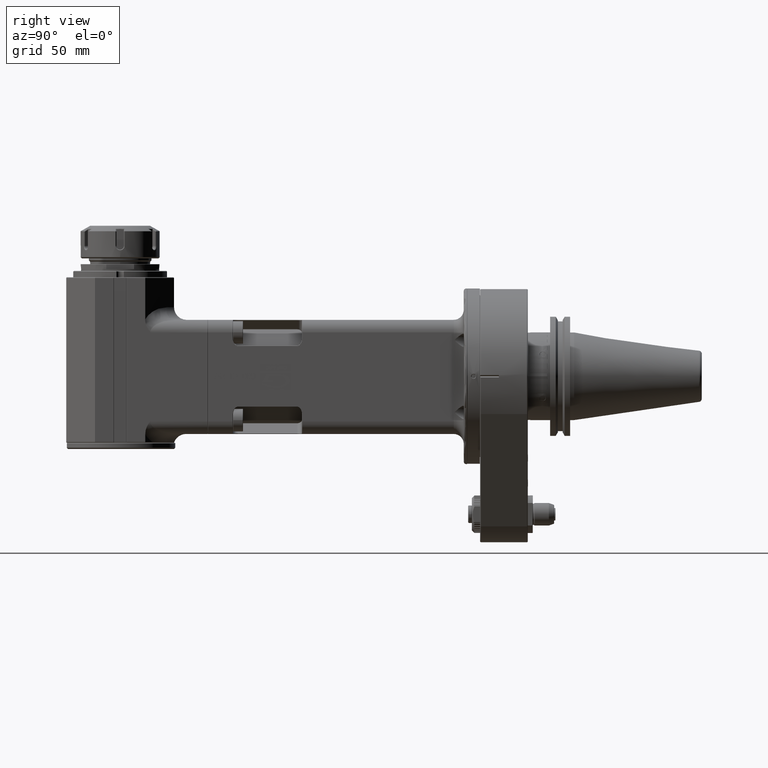
[diagram: clean part render]
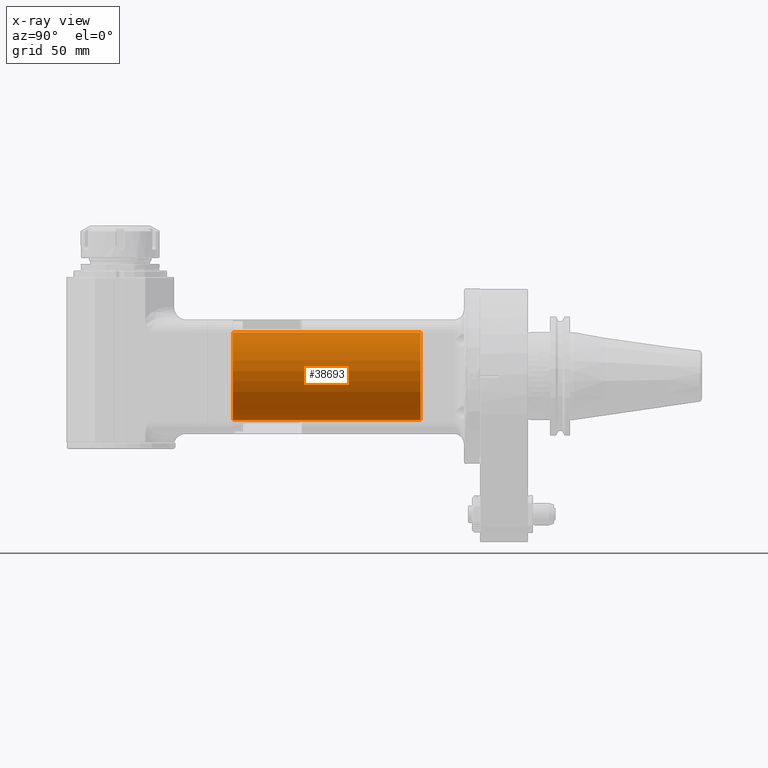
[diagram: x-ray — body ghosted, one internal face saturated and labeled with its STEP entity id]
A machine part, right view, then the same camera in x-ray: the body is ghosted and one INTERNAL B-rep face — a face not visible from any outside direction — is saturated and labeled: STEP entity #38693.
In plain terms, the highlighted cylindrical surface (bore or boss wall) has radius 35 mm, axis along (-0, 1, 0).
Its self-contained STEP definition (entity closure, byte-faithful):
#2159=LINE('',#57457,#5191);
#5191=VECTOR('',#45812,35.);
#8203=CYLINDRICAL_SURFACE('',#41299,35.);
#9077=FACE_OUTER_BOUND('',#11500,.T.);
#11500=EDGE_LOOP('',(#26096,#26097,#26098,#26099));
#14189=CIRCLE('',#41298,35.);
#14190=CIRCLE('',#41300,35.);
#16084=VERTEX_POINT('',#57453);
#16085=VERTEX_POINT('',#57456);
#19971=EDGE_CURVE('',#16084,#16084,#14189,.T.);
#19972=EDGE_CURVE('',#16084,#16085,#2159,.T.);
#19973=EDGE_CURVE('',#16085,#16085,#14190,.T.);
#26096=ORIENTED_EDGE('',*,*,#19971,.F.);
#26097=ORIENTED_EDGE('',*,*,#19972,.T.);
#26098=ORIENTED_EDGE('',*,*,#19973,.F.);
#26099=ORIENTED_EDGE('',*,*,#19972,.F.);
#38693=ADVANCED_FACE('',(#9077),#8203,.F.);
#41298=AXIS2_PLACEMENT_3D('',#57454,#45808,#45809);
#41299=AXIS2_PLACEMENT_3D('',#57455,#45810,#45811);
#41300=AXIS2_PLACEMENT_3D('',#57458,#45813,#45814);
#45808=DIRECTION('center_axis',(0.,1.,0.));
#45809=DIRECTION('ref_axis',(0.,0.,-1.));
#45810=DIRECTION('center_axis',(0.,1.,0.));
#45811=DIRECTION('ref_axis',(0.,0.,-1.));
#45812=DIRECTION('',(0.,1.,0.));
#45813=DIRECTION('center_axis',(0.,-1.,0.));
#45814=DIRECTION('ref_axis',(0.,0.,1.));
#57453=CARTESIAN_POINT('',(4.28626379701574E-15,-197.,35.));
#57454=CARTESIAN_POINT('Origin',(0.,-197.,3.637200993468E-14));
#57455=CARTESIAN_POINT('Origin',(0.,-229.35,4.033374232992E-14));
#57456=CARTESIAN_POINT('',(4.28626379701574E-15,-47.5,35.));
#57457=CARTESIAN_POINT('',(4.28626379701574E-15,-229.35,35.));
#57458=CARTESIAN_POINT('Origin',(0.,-47.5,1.806354028742E-14));